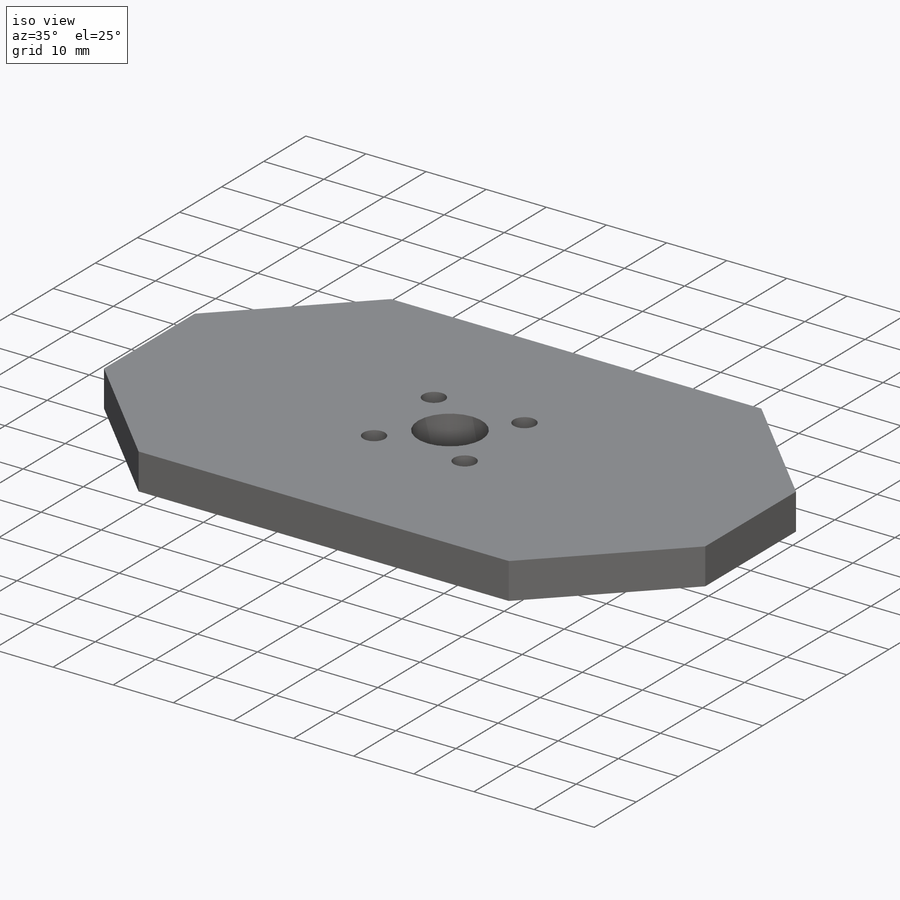
[diagram: iso view]
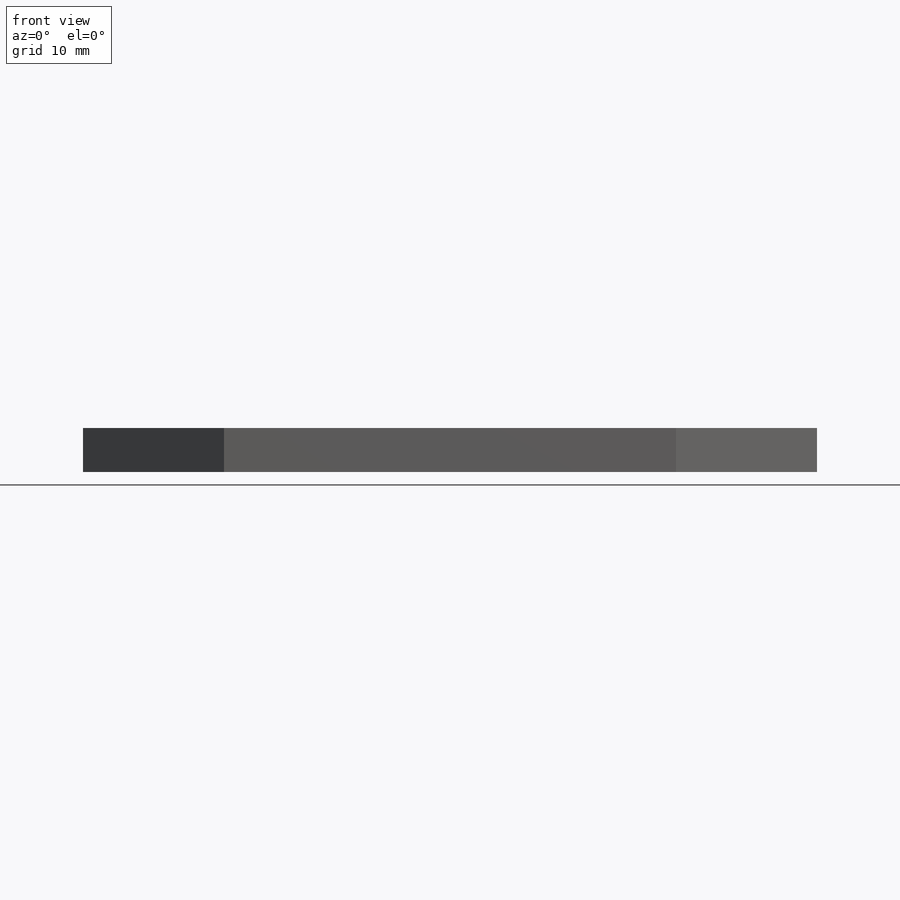
[diagram: front view]
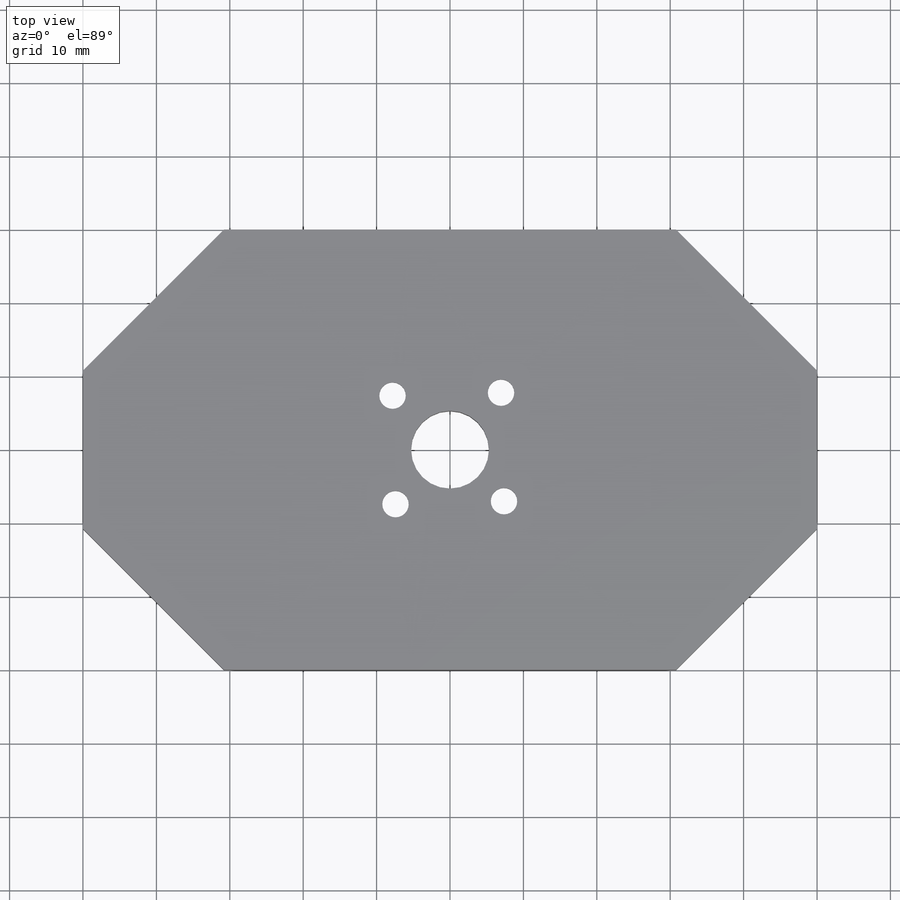
[diagram: top view]
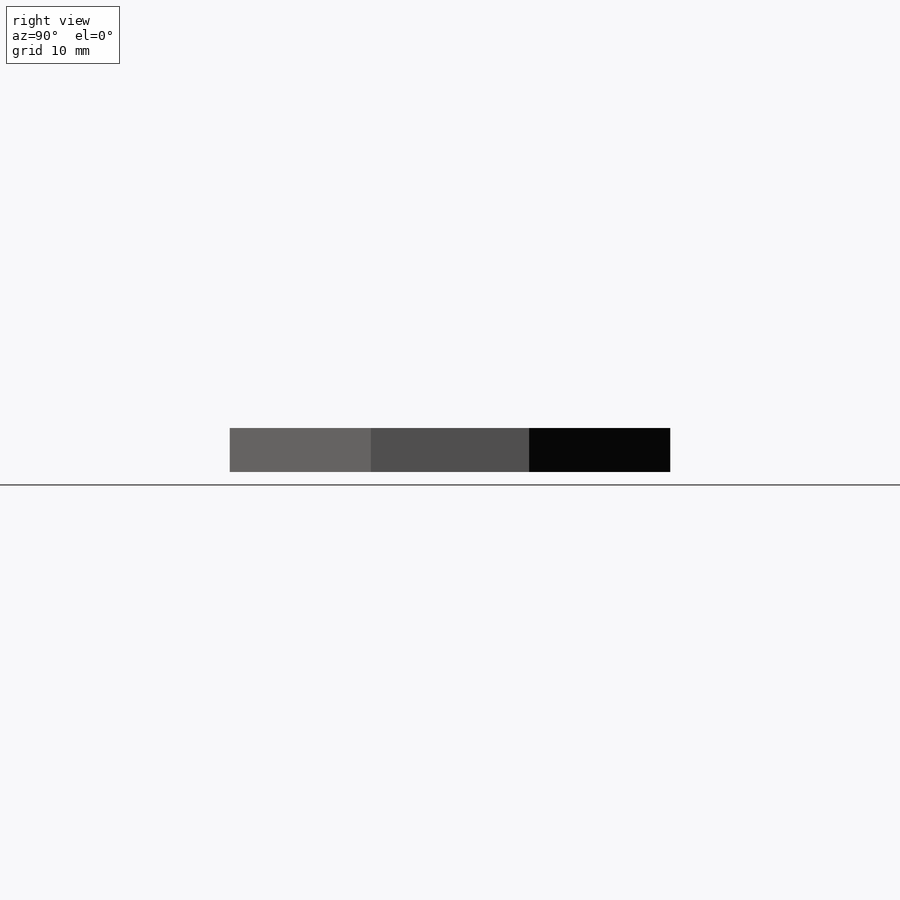
[diagram: right view]
SOLIDWORKS PART (.sldprt)
format: sldprt  version: not decoded by parser v0  size: 164,352 bytes
history: native  units: mm
features: plane x3, sketch x3, cut_extrude x2, material x1, extrude x1 (+8 scaffold rows collapsed)
feature tree (18):
  scaffold x8  (default folders/planes/origin — collapsed)
  material  "Material <sin especificar>"
  plane  "Alzado"
  plane  "Planta"
  plane  "Vista lateral"
  sketch  "Croquis1"  dims[c1.D1=60.0mm c1.D2=100.0mm c1.D3=~6.62575mm c2.D3=~149.036243deg c3.D3=~14.118541mm c4.D3=45.0deg]
  extrude  "Saliente-Extruir1"  Depth=6mm
  sketch  "Croquis2"  dims[c1.D1=10.6mm c1.D2=21.0mm c1.D3=3.6mm c1.D4=~8.510167mm c2.D4=45.0deg c2.D5=4.0]
  cut_extrude  "Cortar-Extruir1"  [1 undecoded]
  sketch  "Croquis3"  dims[D1=8.0mm]
  cut_extrude  "Cortar-Extruir2"  Depth=2mm
decode coverage: 5 of 6 modeling features carry decoded parameters
note: ~ marks probable driven/reference dimensions
note: 1 parameter value undecoded
note: suppression state not decoded; provenance and decode notes live in map.json
